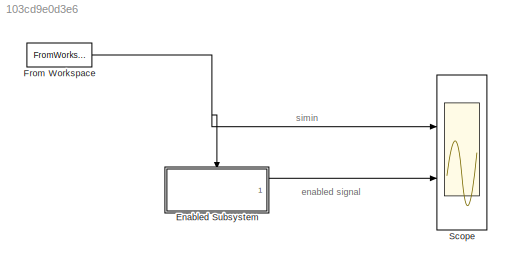
MODEL slx_103cd9e0d3e6
KIND model
CONFIG AbsTol = auto
CONFIG FixedStep = auto
CONFIG MaxStep = 0.01
CONFIG MinStep = auto
CONFIG RelTol = 1e-3
CONFIG SampleTimeConstraint = Unconstrained
CONFIG Solver = VariableStepAuto
CONFIG SolverMode = Auto
CONFIG SolverName = VariableStepAuto
CONFIG StartTime = 0.0
CONFIG StopTime = 10.0
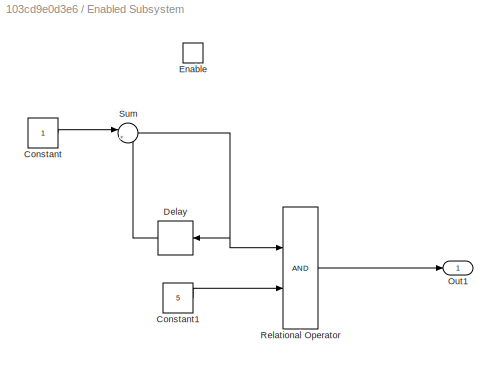
BLOCK [SubSystem] Enabled Subsystem
  Ports = [0, 1, 1]
  RequestExecContextInheritance = off
  TreatAsAtomicUnit = on
  Variant = off
BLOCK [Constant] Enabled Subsystem/Constant
BLOCK [Constant] Enabled Subsystem/Constant1
  Value = 5
BLOCK [Delay] Enabled Subsystem/Delay
  DelayLength = 1
  InitialCondition = 0
  InputPortMap = u0
  Ports = [1, 1]
  SampleTime = 1
BLOCK [EnablePort] Enabled Subsystem/Enable
  Ports = []
  StatesWhenEnabling = reset
BLOCK [Outport] Enabled Subsystem/Out1
  IconDisplay = Port number
BLOCK [RelationalOperator] Enabled Subsystem/Relational Operator
  InputSameDT = off
  OutDataTypeStr = boolean
  Ports = [2, 1]
BLOCK [Sum] Enabled Subsystem/Sum
  IconShape = round
  InputSameDT = off
  Inputs = |++
  OutDataTypeStr = Inherit: Inherit via internal rule
  Ports = [2, 1]
  SaturateOnIntegerOverflow = off
BLOCK [FromWorkspace] From Workspace
  SampleTime = 0
  VariableName = simin
  ZeroCross = on
BLOCK [Scope] Scope
  NumInputPorts = 2
  Ports = [2]
  ScopeSpecificationString = Simulink.scopes.TimeScopeBlockCfg('CurrentConfiguration', extmgr.ConfigurationSet(extmgr.Configuration('Core','General UI',true),extmgr.Configuration('Core','Source UI',true),extmgr.Configuration('Sources','WiredSimulink',true),extmgr.Configuration('Visuals','Time Domain',true,'SerializedDisplays',{struct('MinYLimReal','-0.125','MaxYLimReal','1.125','YLabelReal','','MinYLimMag','0.00000','MaxYLimM...<+1920ch>
ANNOTATION (root): enabled signal
ANNOTATION (root): simin
LINE Enabled Subsystem/Constant1:1 -> Enabled Subsystem/Relational Operator:2
LINE Enabled Subsystem/Constant:1 -> Enabled Subsystem/Sum:1
LINE Enabled Subsystem/Delay:1 -> Enabled Subsystem/Sum:2
LINE Enabled Subsystem/Relational Operator:1 -> Enabled Subsystem/Out1:1
NET Enabled Subsystem/Sum:1 -> Enabled Subsystem/Delay:1, Enabled Subsystem/Relational Operator:1
LINE Enabled Subsystem:1 -> Scope:2
NET From Workspace:1 -> Enabled Subsystem:enable, Scope:1
note: NET lines group one-source signal fan-out (src -> all destinations, sorted); 1:1 wires keep LINE
